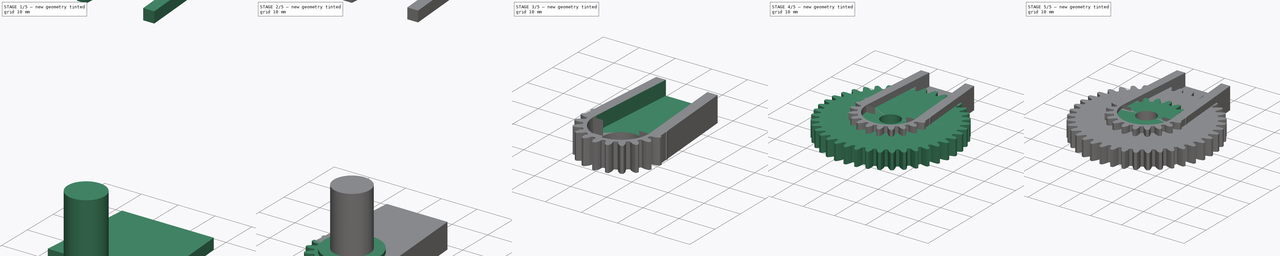
[diagram: build sequence overview — one tinted view per stage of 5, left to right]
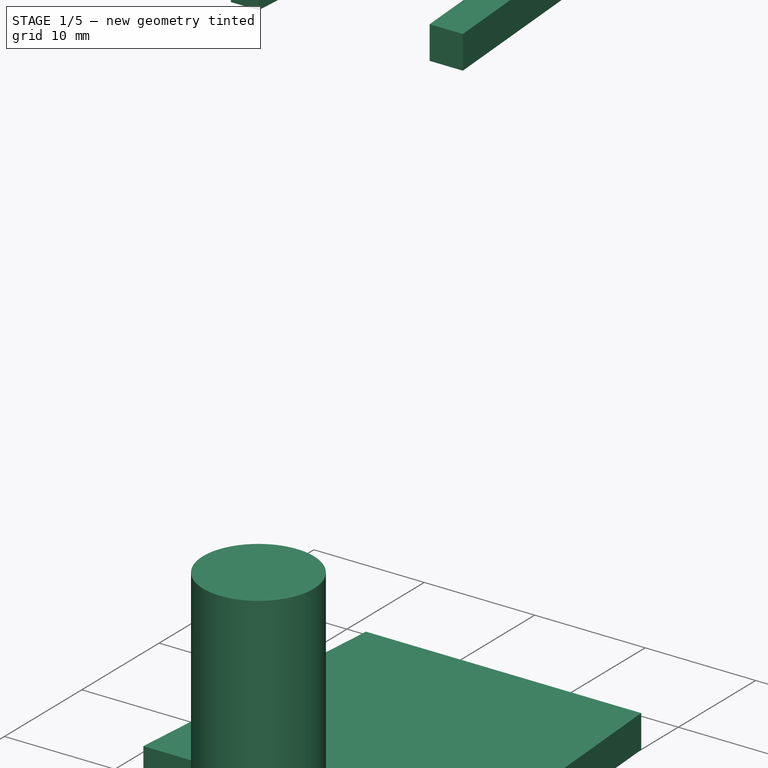
[diagram: stage 1 of 5 — iso view after this stage's code; geometry added in this stage tinted green]
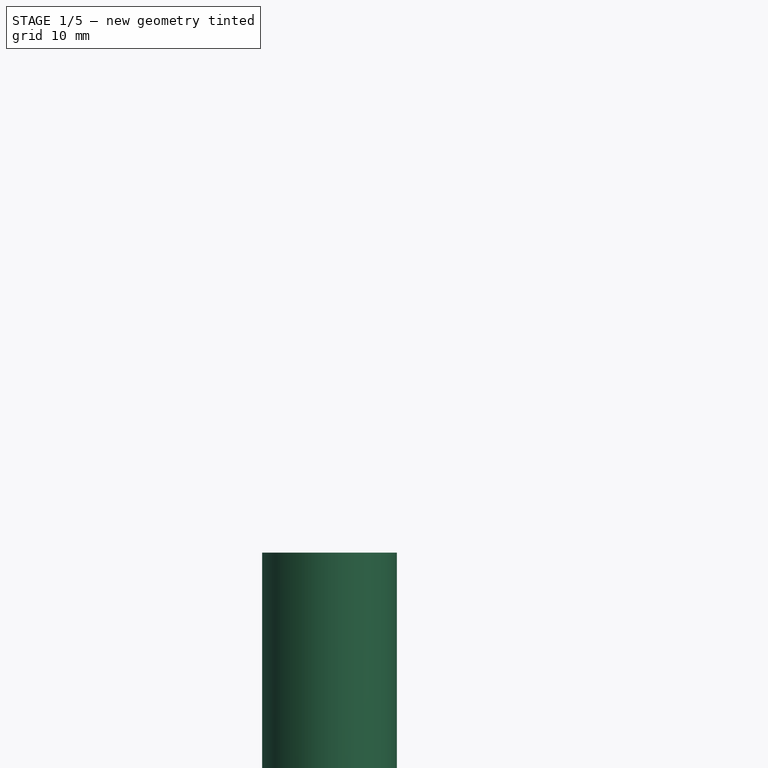
[diagram: stage 1 of 5 — front view after this stage's code; geometry added in this stage tinted green]
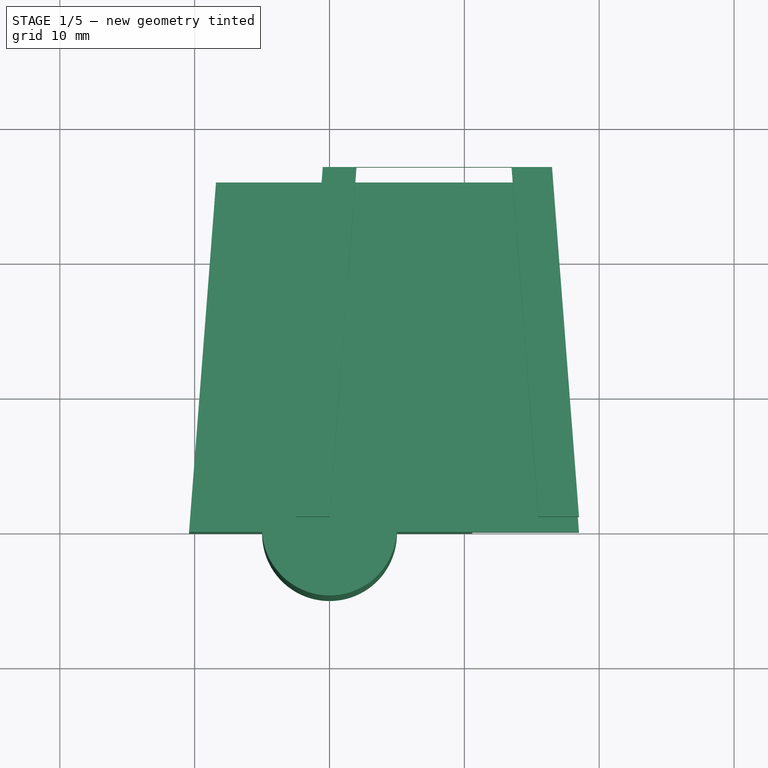
[diagram: stage 1 of 5 — top view after this stage's code; geometry added in this stage tinted green]
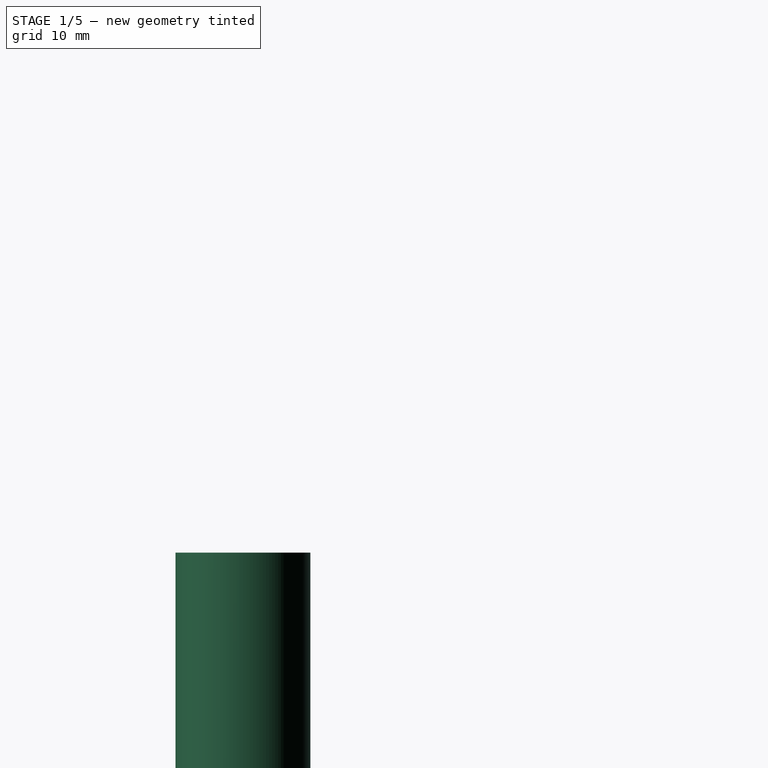
[diagram: stage 1 of 5 — right view after this stage's code; geometry added in this stage tinted green]
FCSTD DOCUMENT  (FreeCAD 0.18R16093 (Git))
Label: chess-robot-gears
License: All rights reserved
LicenseURL: http://en.wikipedia.org/wiki/All_rights_reserved
objects: Part::Extrusion×11, Part::Cut×11, Part::Cylinder×7, Sketcher::SketchObject×6, Part::Part2DObjectPython×4, App::MeasureDistance×2, Part::MultiFuse×2, Part::RegularPolygon×1, App::DocumentObjectGroup×1
note: 42 computed .brp shape members not serialized (recipe doc carries the construction recipe); baked Part::Feature solids carry a one-line shape summary decoded from their .brp

FEATURE [Sketcher::SketchObject] Sketch001
  sketch-geometry (4):
    g0: LineSegment StartX=21 StartY=-1.79384e-07 StartZ=0 EndX=19 EndY=-25.923 EndZ=0
    g1: LineSegment StartX=4.76762e-07 StartY=-1.79384e-07 StartZ=0 EndX=2 EndY=-25.923 EndZ=0
    g2: LineSegment StartX=2 StartY=-25.923 StartZ=0 EndX=19 EndY=-25.923 EndZ=0
    g3: LineSegment StartX=4.76762e-07 StartY=-1.79384e-07 StartZ=0 EndX=21 EndY=-1.79384e-07 EndZ=0
  constraints (10):
    c: Distance(g0) = 26
    c: Distance(g1) = 26
    c: Distance(g3) = 21
    c: Distance(g2) = 17
    c: Coincident(g2,g0)
    c: Coincident(g1,g2)
    c: Coincident(g1,g3)
    c: Coincident(g3,g0)
    c: Parallel(g3,g2)
    c: Angle(g3) = 0
FEATURE [Part::Extrusion] Extrude006
  Base = -> Sketch001
  Dir = (0,0,1)
  DirMode = 2
  FaceMakerClass = Part::FaceMakerBullseye
  LengthFwd = 3
  LengthRev = 0
  Placement = pos=(18.5,0,4) rot=(0,0,1;3.14159rad)
  Solid = true
  Symmetric = false
FEATURE [Sketcher::SketchObject] Sketch002
  sketch-geometry (4):
    g0: LineSegment StartX=18.918 StartY=0.00326467 StartZ=0 EndX=16.918 EndY=-25.9197 EndZ=0
    g1: LineSegment StartX=-2.082 StartY=0.00326467 StartZ=0 EndX=-0.0820011 EndY=-25.9197 EndZ=0
    g2: LineSegment StartX=-0.0820011 StartY=-25.9197 StartZ=0 EndX=16.918 EndY=-25.9197 EndZ=0
    g3: LineSegment StartX=-2.082 StartY=0.00326467 StartZ=0 EndX=18.918 EndY=0.00326467 EndZ=0
  constraints (10):
    c: Distance(g0) = 26
    c: Distance(g1) = 26
    c: Distance(g3) = 21
    c: Distance(g2) = 17
    c: Coincident(g2,g0)
    c: Coincident(g1,g2)
    c: Coincident(g1,g3)
    c: Coincident(g3,g0)
    c: Parallel(g3,g2)
    c: Angle(g3) = 0
FEATURE [Part::Extrusion] Extrude007
  Base = -> Sketch002
  Dir = (0,0,1)
  DirMode = 2
  FaceMakerClass = Part::FaceMakerBullseye
  LengthFwd = 7
  LengthRev = 0
  Placement = pos=(8.5,0,0) rot=(0,0,1;3.14159rad)
  Solid = true
  Symmetric = false
FEATURE [Part::Cylinder] Cylinder006
  Angle = 360
  AttacherType = Attacher::AttachEngine3D
  Height = 24
  Radius = 5
FEATURE [Sketcher::SketchObject] Sketch004
  sketch-geometry (4):
    g0: LineSegment StartX=15.5 StartY=-3.34671e-07 StartZ=0 EndX=13.5 EndY=25.923 EndZ=0
    g1: LineSegment StartX=2.6132e-07 StartY=-3.34671e-07 StartZ=0 EndX=2 EndY=25.923 EndZ=0
    g2: LineSegment StartX=2 StartY=25.923 StartZ=0 EndX=13.5 EndY=25.923 EndZ=0
    g3: LineSegment StartX=2.6132e-07 StartY=-3.34671e-07 StartZ=0 EndX=15.5 EndY=-3.34671e-07 EndZ=0
  constraints (10):
    c: Distance(g0) = 26
    c: Distance(g1) = 26
    c: Distance(g2) = 11.5
    c: Distance(g3) = 15.5
    c: Coincident(g2,g1)
    c: Coincident(g2,g0)
    c: Coincident(g3,g1)
    c: Coincident(g3,g0)
    c: Parallel(g3,g2)
    c: Angle(g3) = 0
FEATURE [Part::Extrusion] Extrude009
  Base = -> Sketch004
  Dir = (0,0,1)
  DirMode = 2
  FaceMakerClass = Part::FaceMakerBullseye
  LengthFwd = 3
  LengthRev = 0
  Placement = pos=(0,0,4) rot=(0,0,1;0rad)
  Solid = true
  Symmetric = false
FEATURE [Sketcher::SketchObject] Sketch005
  sketch-geometry (4):
    g0: LineSegment StartX=21 StartY=-1.79384e-07 StartZ=0 EndX=19 EndY=-25.923 EndZ=0
    g1: LineSegment StartX=4.76762e-07 StartY=-1.79384e-07 StartZ=0 EndX=2 EndY=-25.923 EndZ=0
    g2: LineSegment StartX=2 StartY=-25.923 StartZ=0 EndX=19 EndY=-25.923 EndZ=0
    g3: LineSegment StartX=4.76762e-07 StartY=-1.79384e-07 StartZ=0 EndX=21 EndY=-1.79384e-07 EndZ=0
  constraints (10):
    c: Distance(g0) = 26
    c: Distance(g1) = 26
    c: Distance(g3) = 21
    c: Distance(g2) = 17
    c: Coincident(g2,g0)
    c: Coincident(g1,g2)
    c: Coincident(g1,g3)
    c: Coincident(g3,g0)
    c: Parallel(g3,g2)
    c: Angle(g3) = 0
FEATURE [Part::Extrusion] Extrude010
  Base = -> Sketch005
  Dir = (0,0,1)
  DirMode = 2
  FaceMakerClass = Part::FaceMakerBullseye
  LengthFwd = 3
  LengthRev = 0
  Placement = pos=(18.5,0,4) rot=(0,0,1;3.14159rad)
  Solid = true
  Symmetric = false
FEATURE [Part::Cut] Cut009  label="deletes-redundant"
  Base = -> Extrude010
  Placement = pos=(0,0,66) rot=(0,0,1;0rad)
  Tool = -> Extrude009
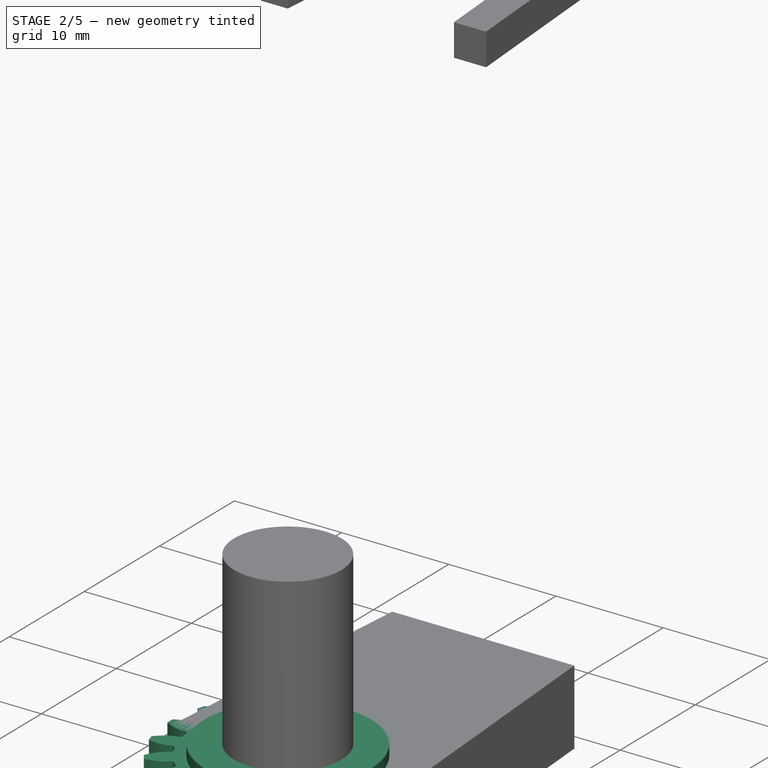
[diagram: stage 2 of 5 — iso view after this stage's code; geometry added in this stage tinted green]
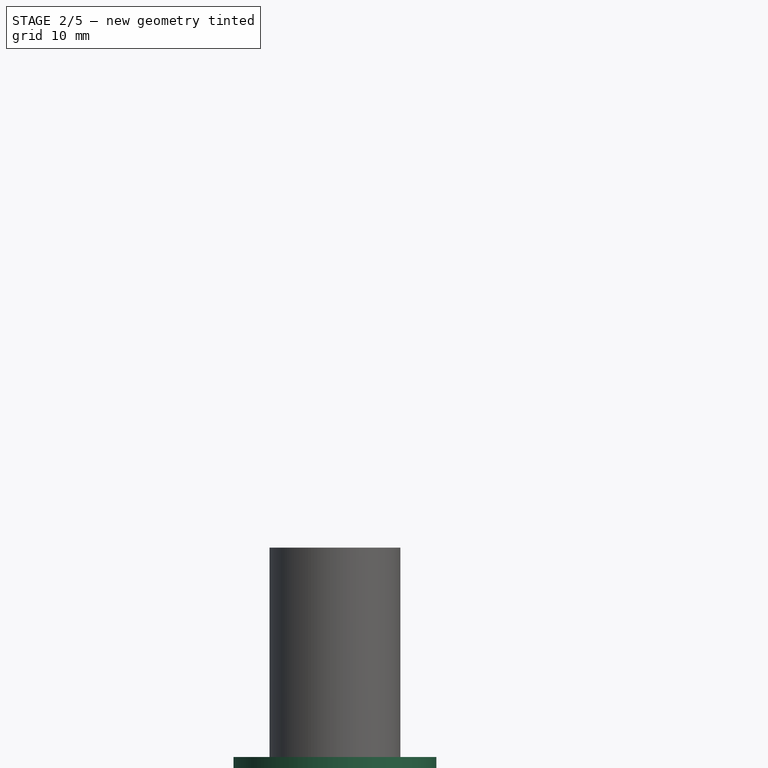
[diagram: stage 2 of 5 — front view after this stage's code; geometry added in this stage tinted green]
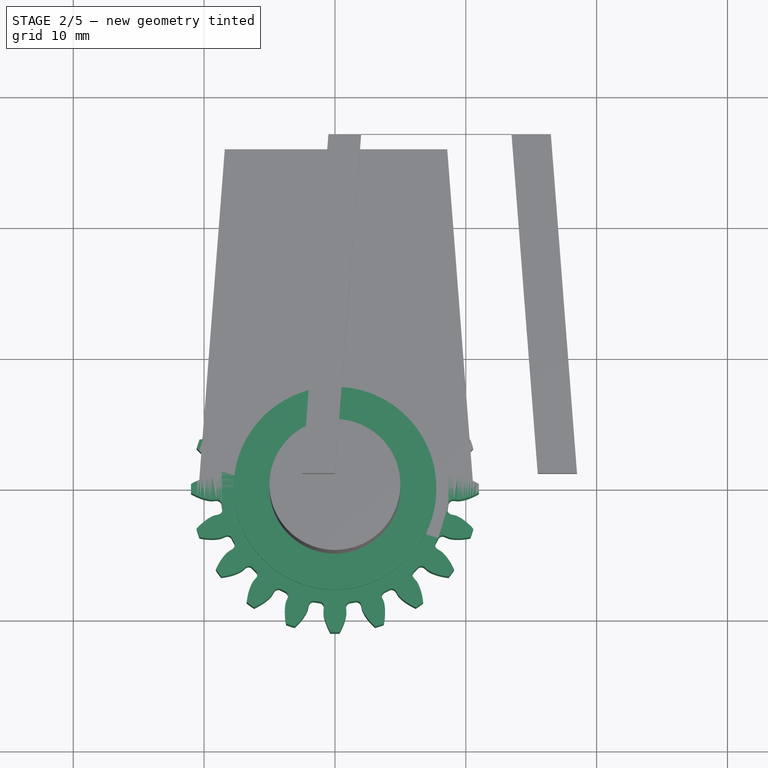
[diagram: stage 2 of 5 — top view after this stage's code; geometry added in this stage tinted green]
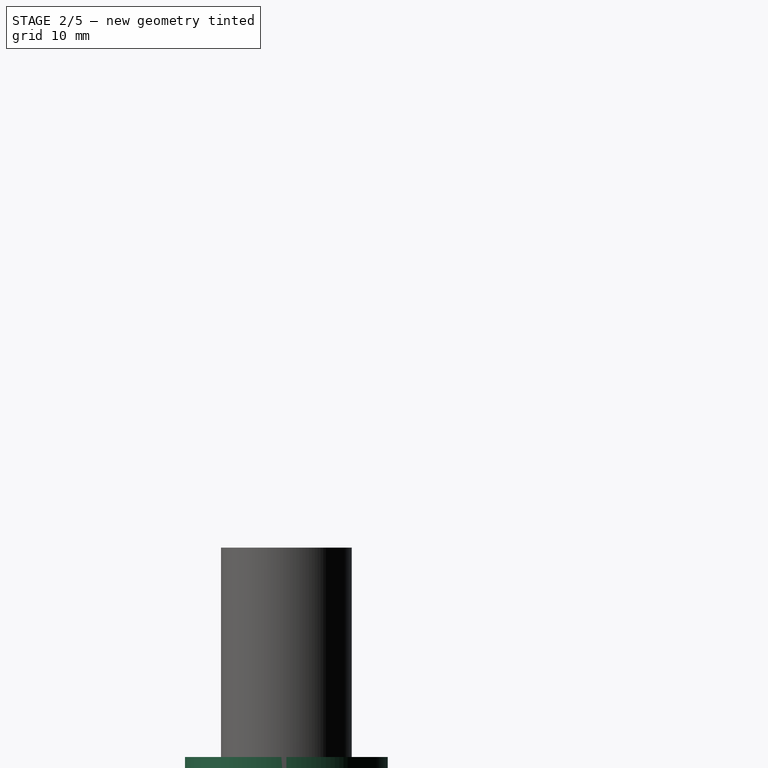
[diagram: stage 2 of 5 — right view after this stage's code; geometry added in this stage tinted green]
FEATURE [App::DocumentObjectGroup] Group  label="Large gear"
  Group = -> [Cut001,Cut003]
FEATURE [App::MeasureDistance] Distance  label="Distance: 17.68 mm"
  Distance = 17.6794
  P1 = (-8.69571,1.08145,6)
  P2 = (8.98227,0.853955,6)
FEATURE [App::MeasureDistance] Distance001  label="Distance: 3.00 mm"
  Distance = 3.00001
  P1 = (10.9958,0.338358,3)
  P2 = (10.9956,0.346967,0)
FEATURE [Part::Part2DObjectPython] InvoluteGear003  # Draft 2D object (typed FeaturePython)
  ExternalGear = true
  HighPrecision = true
  Modules = 1
  NumberOfTeeth = 20
  PressureAngle = 20
FEATURE [Part::Extrusion] Extrude004
  Base = -> InvoluteGear003
  Dir = (0,0,1)
  DirMode = 2
  FaceMakerClass = Part::FaceMakerBullseye
  LengthFwd = 7
  LengthRev = 0
  Solid = true
  Symmetric = false
FEATURE [Part::Cylinder] Cylinder004
  Angle = 360
  AttacherType = Attacher::AttachEngine3D
  Height = 10
  Radius = 3.5
FEATURE [Part::Cylinder] Cylinder005
  Angle = 360
  AttacherType = Attacher::AttachEngine3D
  Height = 5
  Placement = pos=(0,0,3) rot=(0,0,1;0rad)
  Radius = 7.75
FEATURE [Sketcher::SketchObject] Sketch
  sketch-geometry (4):
    g0: LineSegment StartX=15.5 StartY=-3.34671e-07 StartZ=0 EndX=13.5 EndY=25.923 EndZ=0
    g1: LineSegment StartX=2.6132e-07 StartY=-3.34671e-07 StartZ=0 EndX=2 EndY=25.923 EndZ=0
    g2: LineSegment StartX=2 StartY=25.923 StartZ=0 EndX=13.5 EndY=25.923 EndZ=0
    g3: LineSegment StartX=2.6132e-07 StartY=-3.34671e-07 StartZ=0 EndX=15.5 EndY=-3.34671e-07 EndZ=0
  constraints (10):
    c: Distance(g0) = 26
    c: Distance(g1) = 26
    c: Distance(g2) = 11.5
    c: Distance(g3) = 15.5
    c: Coincident(g2,g1)
    c: Coincident(g2,g0)
    c: Coincident(g3,g1)
    c: Coincident(g3,g0)
    c: Parallel(g3,g2)
    c: Angle(g3) = 0
FEATURE [Part::Extrusion] Extrude005
  Base = -> Sketch
  Dir = (0,0,1)
  DirMode = 2
  FaceMakerClass = Part::FaceMakerBullseye
  LengthFwd = 3
  LengthRev = 0
  Placement = pos=(0,0,4) rot=(0,0,1;0rad)
  Solid = true
  Symmetric = false
FEATURE [Part::Cut] Cut006
  Base = -> Extrude006
  Placement = pos=(0,0,66) rot=(0,0,1;0rad)
  Tool = -> Extrude005
FEATURE [Part::MultiFuse] Fusion
  Shapes = -> [Cut006,Extrude007]
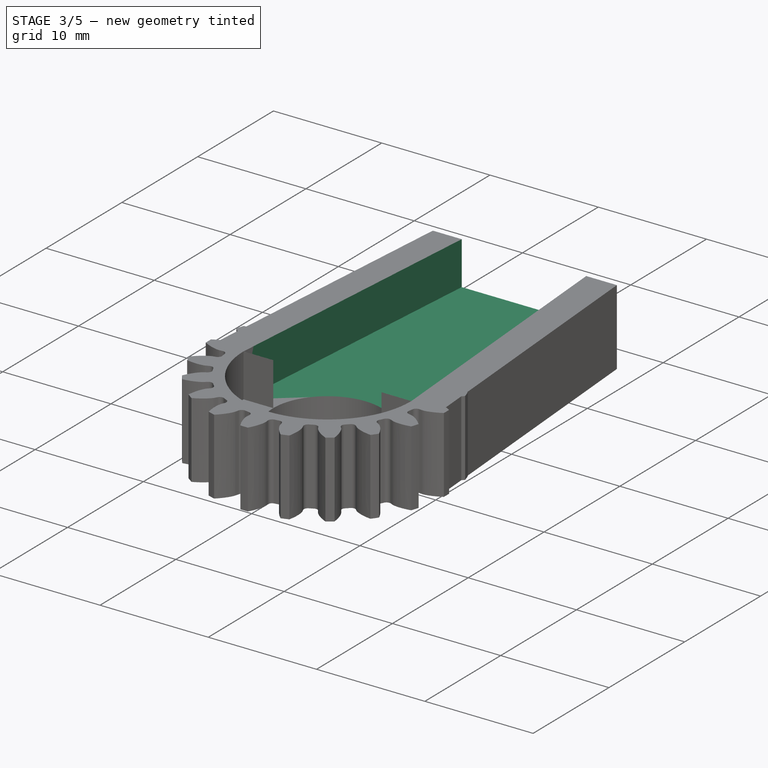
[diagram: stage 3 of 5 — iso view after this stage's code; geometry added in this stage tinted green]
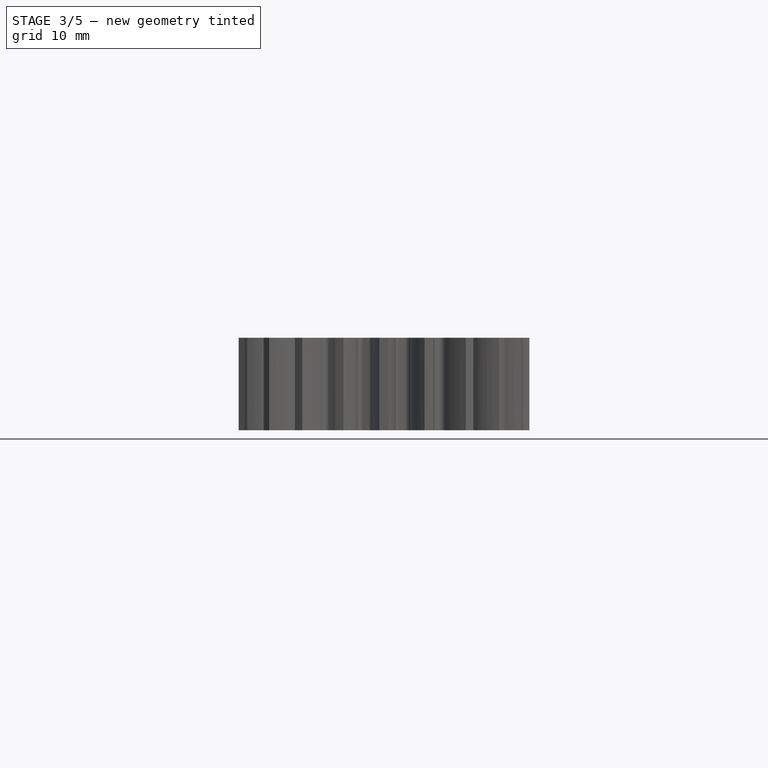
[diagram: stage 3 of 5 — front view after this stage's code; geometry added in this stage tinted green]
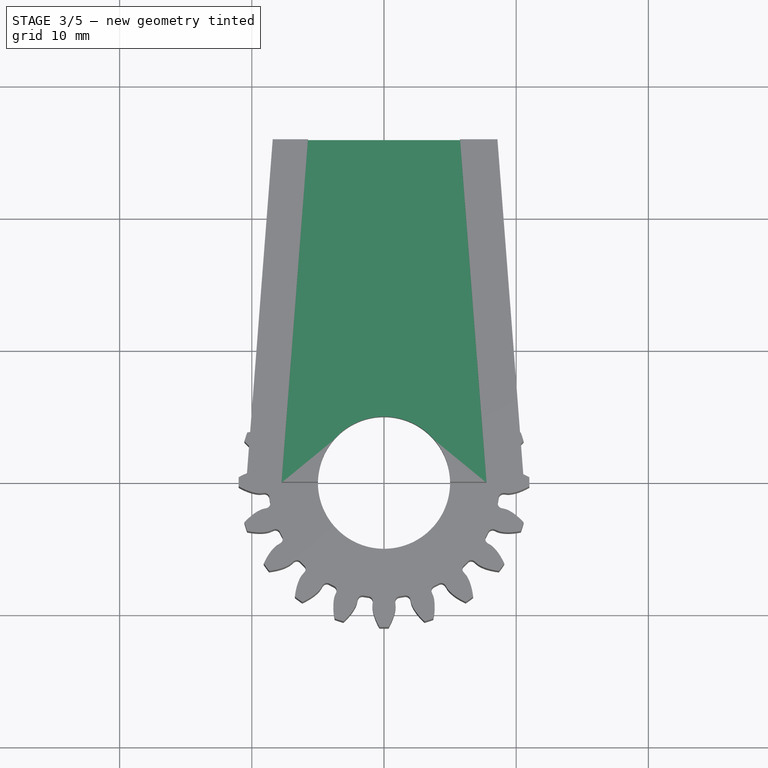
[diagram: stage 3 of 5 — top view after this stage's code; geometry added in this stage tinted green]
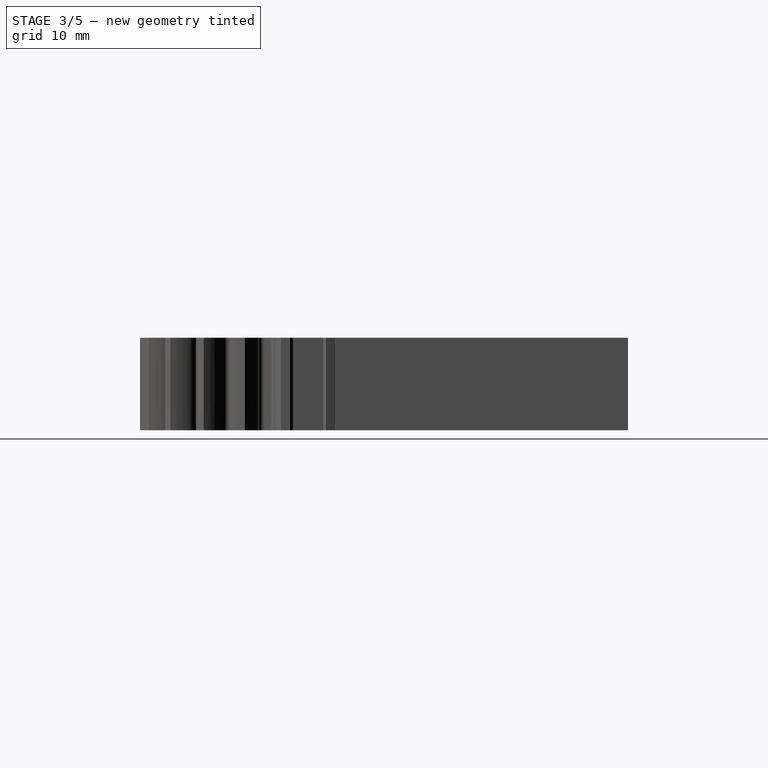
[diagram: stage 3 of 5 — right view after this stage's code; geometry added in this stage tinted green]
FEATURE [Part::Cut] Cut004  label="Small gear001"
  Base = -> Extrude004
  Tool = -> Cylinder004
FEATURE [Part::Cut] Cut005
  Base = -> Cut004
  Tool = -> Cylinder005
FEATURE [Sketcher::SketchObject] Sketch003
  sketch-geometry (4):
    g0: LineSegment StartX=15.5 StartY=-4.53923e-07 StartZ=0 EndX=13.5 EndY=25.923 EndZ=0
    g1: LineSegment StartX=1.38903e-07 StartY=-4.53923e-07 StartZ=0 EndX=2 EndY=25.923 EndZ=0
    g2: LineSegment StartX=2 StartY=25.923 StartZ=0 EndX=13.5 EndY=25.923 EndZ=0
    g3: LineSegment StartX=1.38903e-07 StartY=-4.53923e-07 StartZ=0 EndX=15.5 EndY=-4.53923e-07 EndZ=0
  constraints (10):
    c: Distance(g0) = 26
    c: Distance(g1) = 26
    c: Distance(g2) = 11.5
    c: Distance(g3) = 15.5
    c: Coincident(g2,g1)
    c: Coincident(g2,g0)
    c: Coincident(g3,g1)
    c: Coincident(g3,g0)
    c: Parallel(g3,g2)
    c: Angle(g3) = 0
FEATURE [Part::Extrusion] Extrude008  label="interior-cutout"
  Base = -> Sketch003
  Dir = (0,0,1)
  DirMode = 2
  FaceMakerClass = Part::FaceMakerBullseye
  LengthFwd = 5
  LengthRev = 0
  Placement = pos=(-7.75,0,3) rot=(0,0,1;0rad)
  Solid = true
  Symmetric = false
FEATURE [Part::MultiFuse] Fusion001
  Shapes = -> [Fusion,Cut005]
FEATURE [Part::Cut] Cut007
  Base = -> Fusion001
  Tool = -> Extrude008
FEATURE [Part::Cut] Cut008
  Base = -> Cut007
  Tool = -> Cylinder006
FEATURE [Part::Cut] Cut010
  Base = -> Cut008
  Tool = -> Cut009
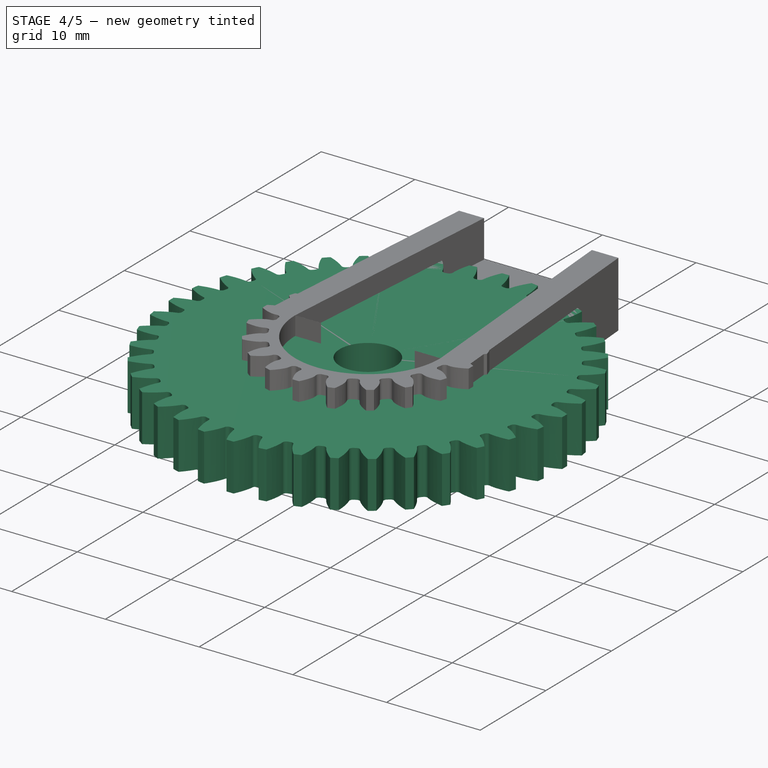
[diagram: stage 4 of 5 — iso view after this stage's code; geometry added in this stage tinted green]
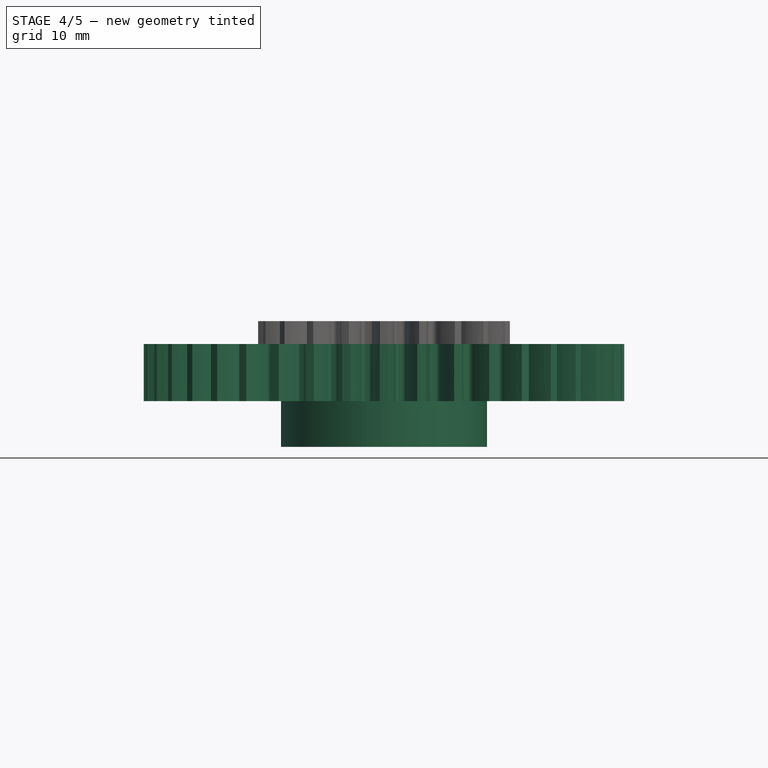
[diagram: stage 4 of 5 — front view after this stage's code; geometry added in this stage tinted green]
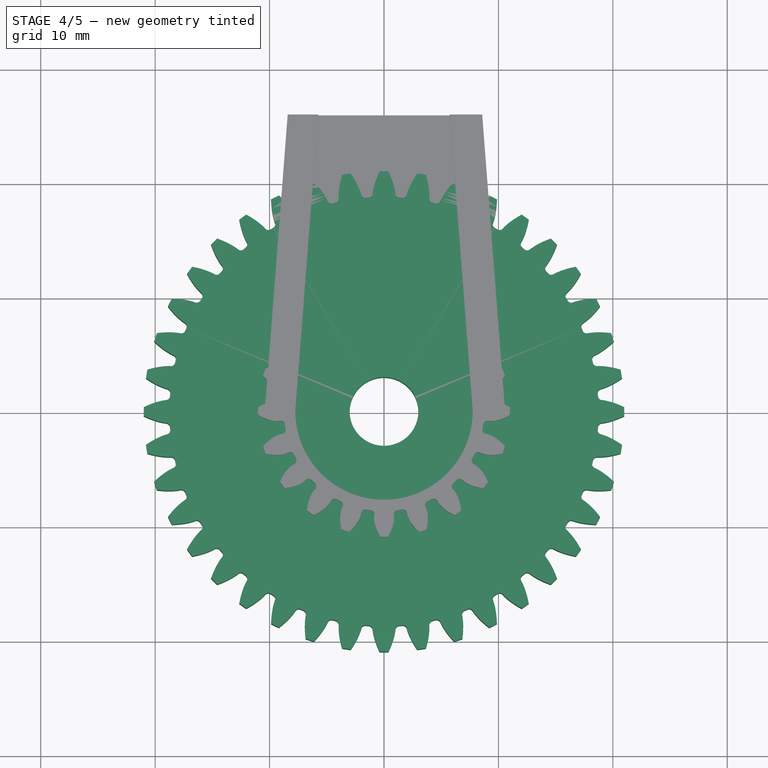
[diagram: stage 4 of 5 — top view after this stage's code; geometry added in this stage tinted green]
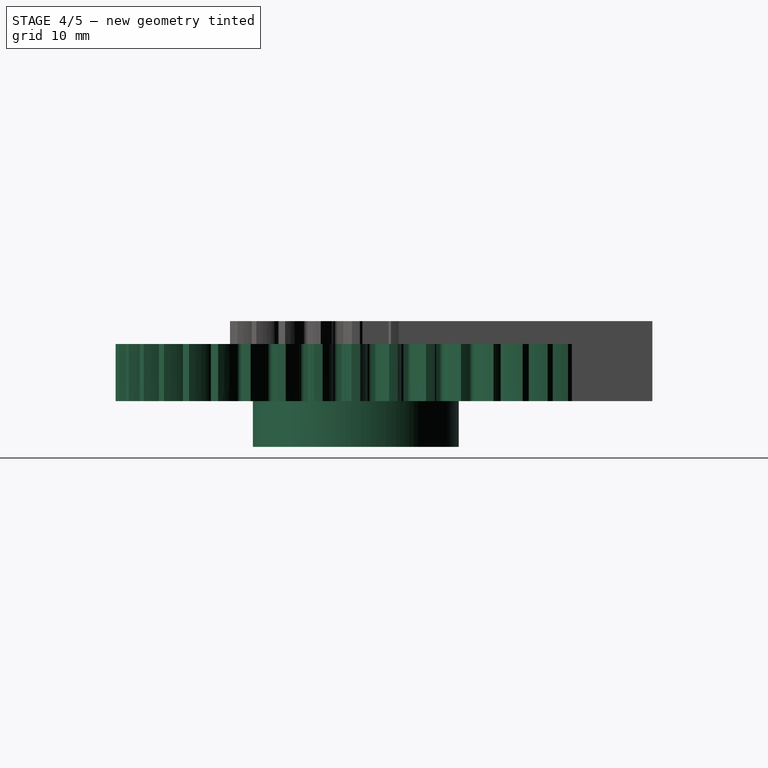
[diagram: stage 4 of 5 — right view after this stage's code; geometry added in this stage tinted green]
FEATURE [Part::Part2DObjectPython] InvoluteGear001  # Draft 2D object (typed FeaturePython)
  ExternalGear = true
  HighPrecision = true
  Modules = 1
  NumberOfTeeth = 40
  PressureAngle = 20
FEATURE [Part::Extrusion] Extrude001
  Base = -> InvoluteGear001
  Dir = (0,0,1)
  DirMode = 2
  FaceMakerClass = Part::FaceMakerBullseye
  LengthFwd = 5
  LengthRev = 0
  Solid = true
  Symmetric = false
FEATURE [Part::Cylinder] Cylinder001
  Angle = 360
  AttacherType = Attacher::AttachEngine3D
  Height = 10
  Radius = 3
FEATURE [Part::Cut] Cut001  label="large-gear"
  Base = -> Extrude001
  Tool = -> Cylinder001
FEATURE [Part::RegularPolygon] RegularPolygon  label="Regular polygon"
  AttacherType = Attacher::AttachEngine3D
  Circumradius = 6
  Polygon = 6
FEATURE [Part::Extrusion] Extrude003  label="hex-head"
  Base = -> RegularPolygon
  Dir = (0,0,1)
  DirMode = 2
  FaceMakerClass = Part::FaceMakerBullseye
  LengthFwd = 4
  LengthRev = 0
  Placement = pos=(0,0,-4) rot=(0,0,1;0rad)
  Solid = true
  Symmetric = false
FEATURE [Part::Cylinder] Cylinder003
  Angle = 360
  AttacherType = Attacher::AttachEngine3D
  Height = 4
  Placement = pos=(0,0,-4) rot=(0,0,1;0rad)
  Radius = 9
FEATURE [Part::Cut] Cut003
  Base = -> Cylinder003
  Tool = -> Extrude003
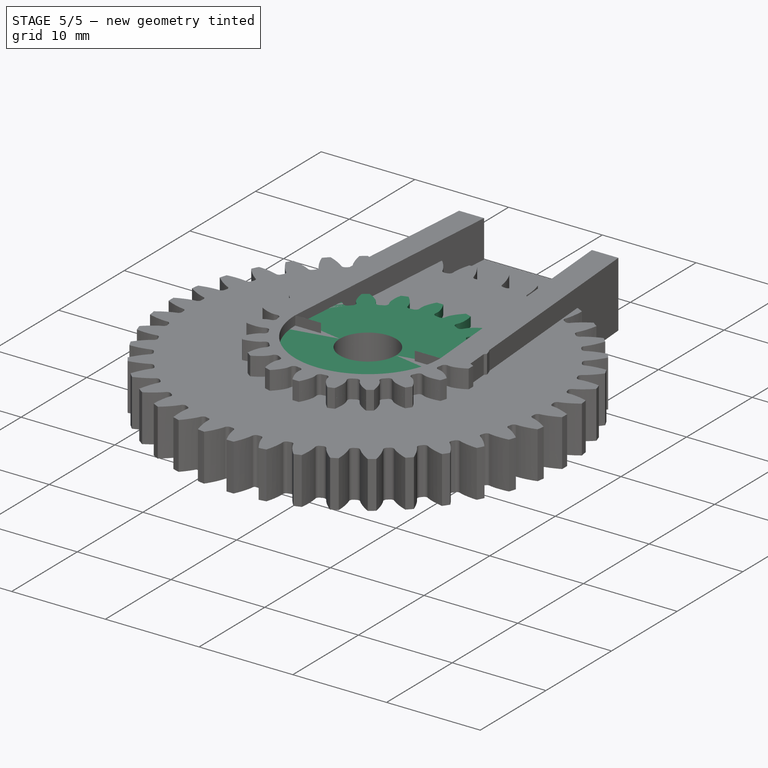
[diagram: stage 5 of 5 — iso view after this stage's code; geometry added in this stage tinted green]
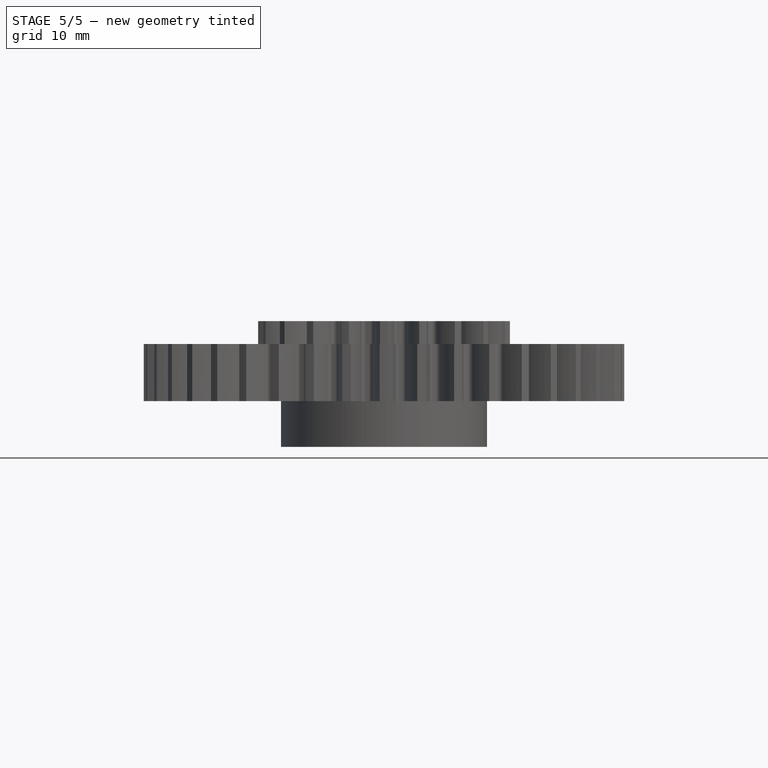
[diagram: stage 5 of 5 — front view after this stage's code; geometry added in this stage tinted green]
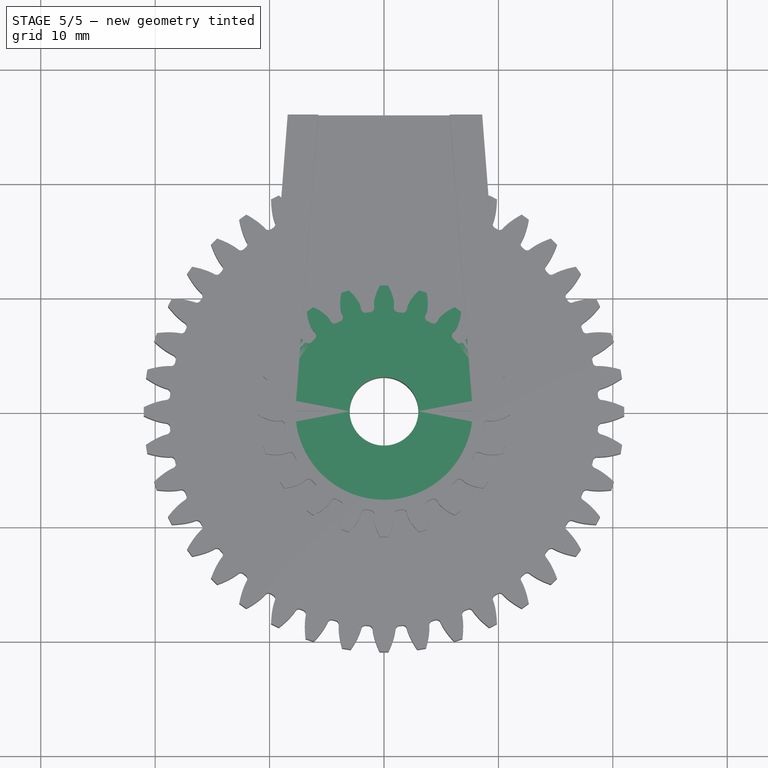
[diagram: stage 5 of 5 — top view after this stage's code; geometry added in this stage tinted green]
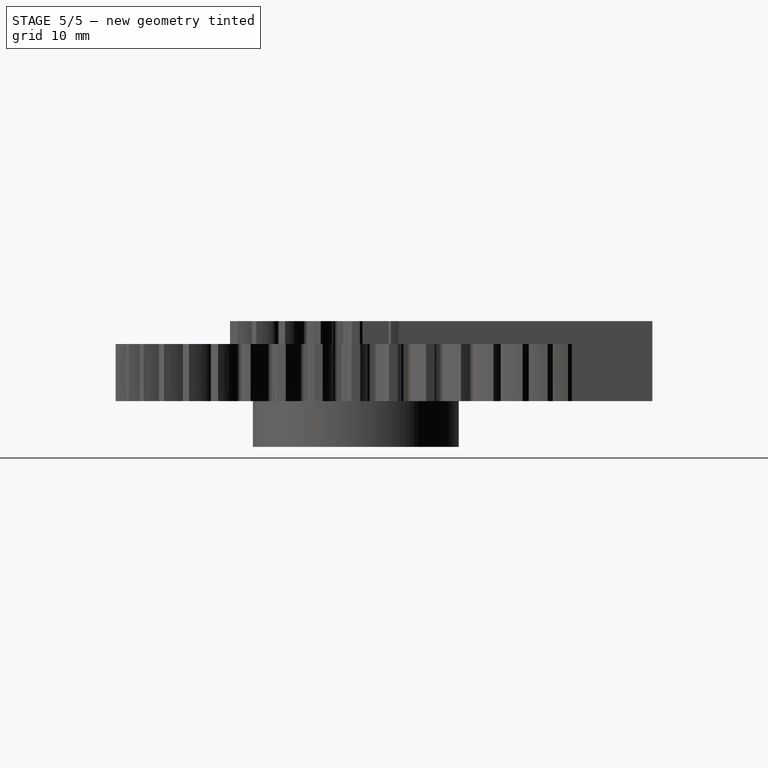
[diagram: stage 5 of 5 — right view after this stage's code; geometry added in this stage tinted green]
FEATURE [Part::Part2DObjectPython] InvoluteGear  # Draft 2D object (typed FeaturePython)
  ExternalGear = true
  HighPrecision = true
  Modules = 1
  NumberOfTeeth = 20
  PressureAngle = 20
FEATURE [Part::Extrusion] Extrude
  Base = -> InvoluteGear
  Dir = (0,0,1)
  DirMode = 2
  FaceMakerClass = Part::FaceMakerBullseye
  LengthFwd = 3
  LengthRev = 0
  Solid = true
  Symmetric = false
FEATURE [Part::Cylinder] Cylinder
  Angle = 360
  AttacherType = Attacher::AttachEngine3D
  Height = 10
  Radius = 4.6
FEATURE [Part::Cut] Cut  label="Small gear"
  Base = -> Extrude
  Tool = -> Cylinder
FEATURE [Part::Part2DObjectPython] InvoluteGear002  # Draft 2D object (typed FeaturePython)
  ExternalGear = true
  HighPrecision = true
  Modules = 1
  NumberOfTeeth = 20
  PressureAngle = 20
FEATURE [Part::Extrusion] Extrude002
  Base = -> InvoluteGear002
  Dir = (0,0,1)
  DirMode = 2
  FaceMakerClass = Part::FaceMakerBullseye
  LengthFwd = 6
  LengthRev = 0
  Solid = true
  Symmetric = false
FEATURE [Part::Cylinder] Cylinder002
  Angle = 360
  AttacherType = Attacher::AttachEngine3D
  Height = 10
  Radius = 3
FEATURE [Part::Cut] Cut002  label="Base gear"
  Base = -> Extrude002
  Tool = -> Cylinder002
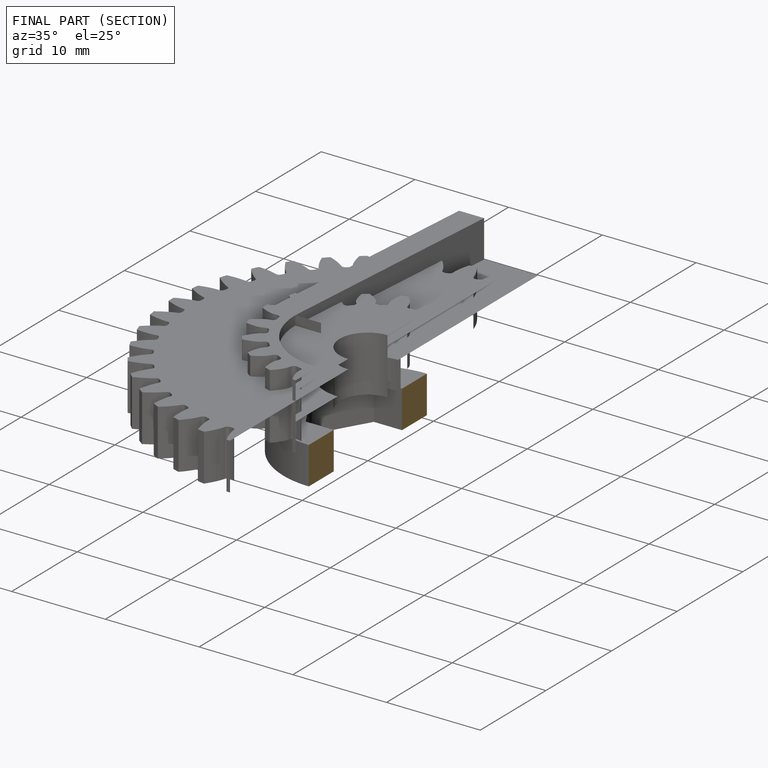
[diagram: finished part — half-section view (interior)]
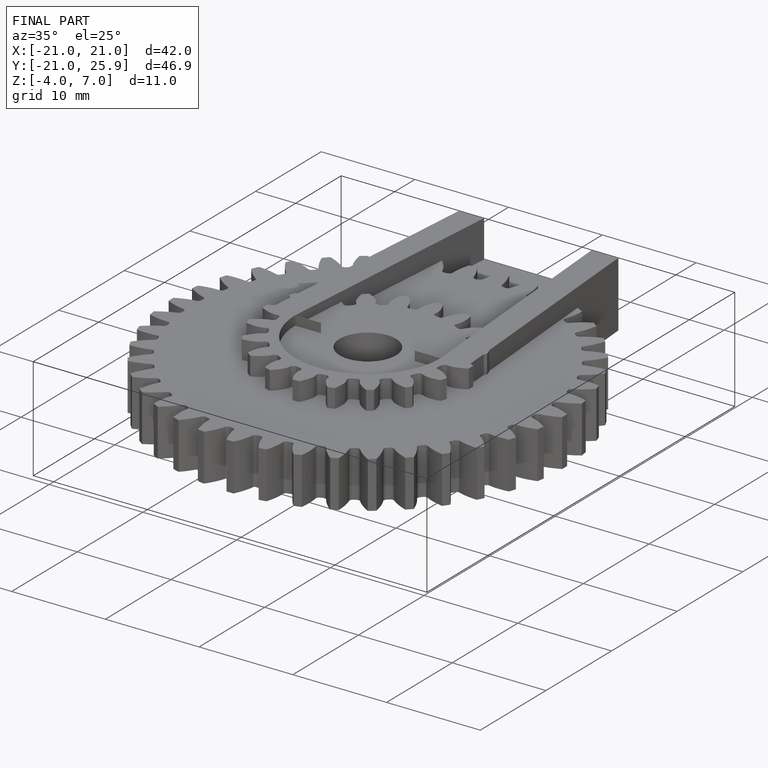
[diagram: finished part — iso view with bounding-box wireframe]
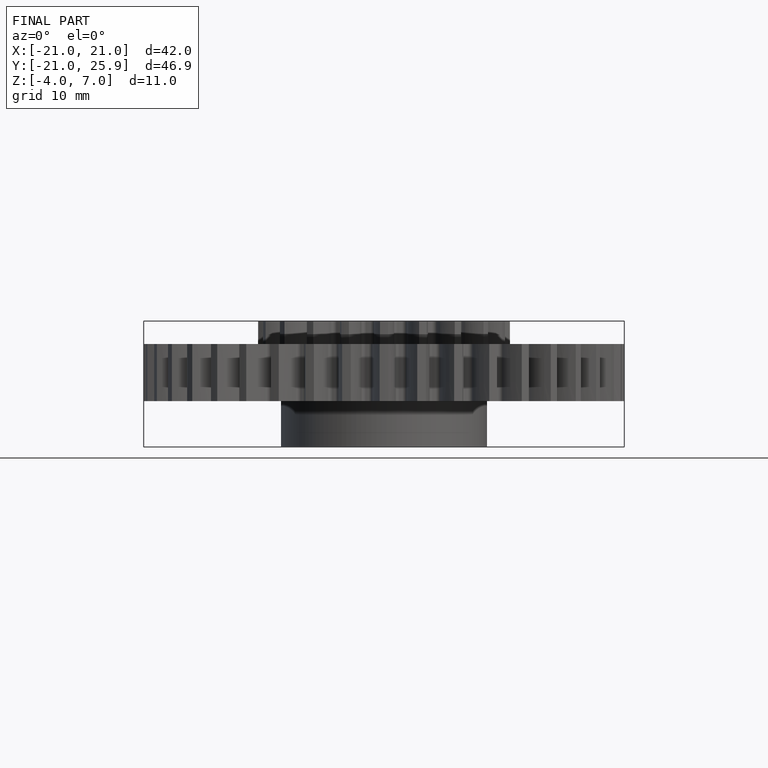
[diagram: finished part — front view with bounding-box wireframe]
